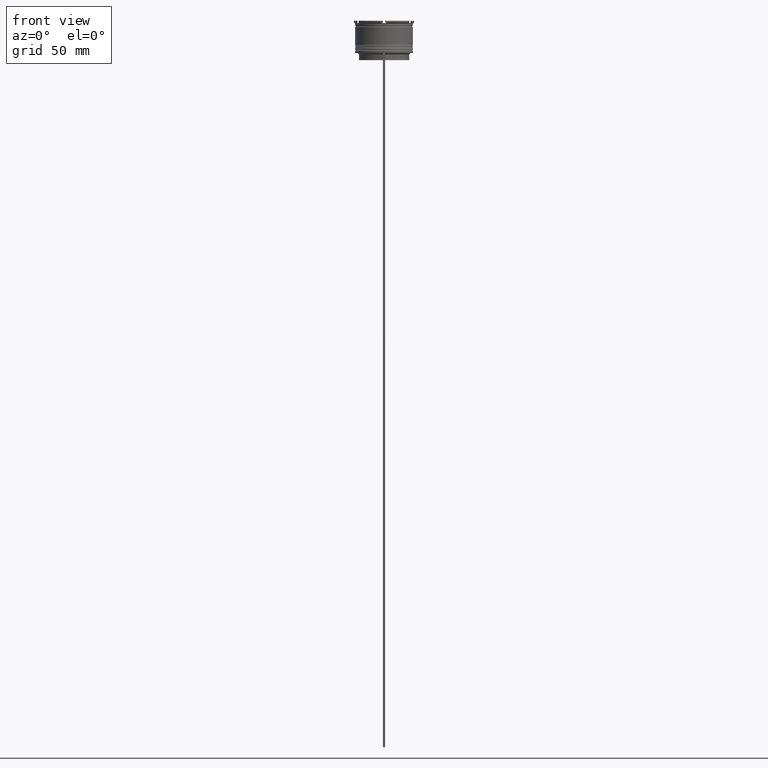
[diagram: clean part render]
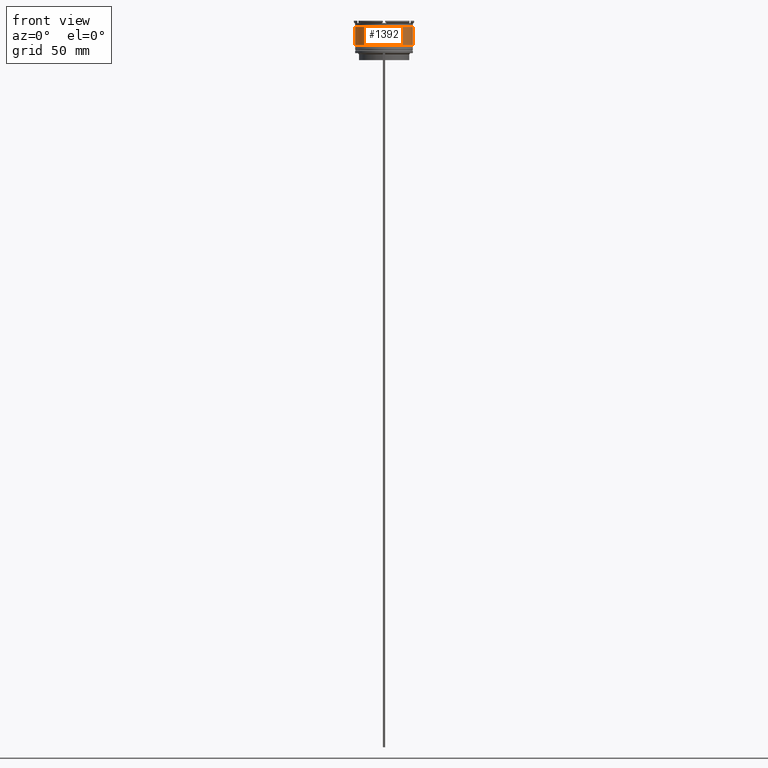
[diagram: same view with one face highlighted and labeled with its STEP entity id]
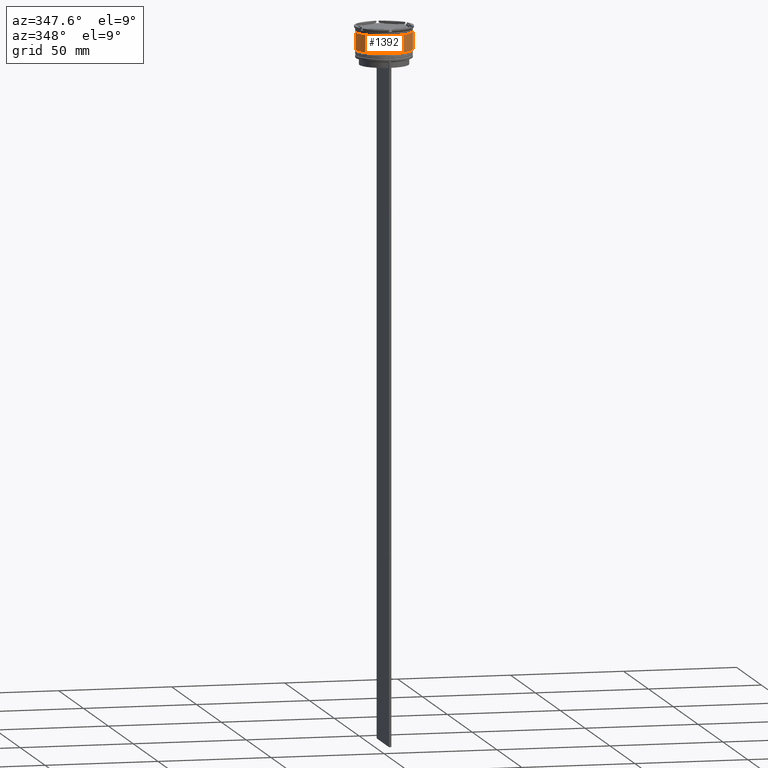
[diagram: same view with one face highlighted and labeled with its STEP entity id]
A machine part, front view. The second image highlights one B-rep face of the part: STEP entity #1392.
A second angle (auxiliary view) of the same face is appended — the face is thin or edge-on in the first view.
In plain terms, the highlighted cylindrical surface (edge-blend (fillet) strip) has radius 12.5 mm, axis along (-0, -0, 1).
Its self-contained STEP definition (entity closure, byte-faithful):
#62 = VECTOR ( 'NONE', #95, 1000.000000000000000 ) ;
#95 = DIRECTION ( 'NONE',  ( -0.000000000000000000, -0.000000000000000000, 1.000000000000000000 ) ) ;
#149 = AXIS2_PLACEMENT_3D ( 'NONE', #1137, #231, #922 ) ;
#219 = LINE ( 'NONE', #880, #1826 ) ;
#231 = DIRECTION ( 'NONE',  ( -0.000000000000000000, -0.000000000000000000, 1.000000000000000000 ) ) ;
#271 = DIRECTION ( 'NONE',  ( -0.000000000000000000, -0.000000000000000000, 1.000000000000000000 ) ) ;
#303 = FACE_OUTER_BOUND ( 'NONE', #1234, .T. ) ;
#534 = EDGE_CURVE ( 'NONE', #2779, #2216, #219, .T. ) ;
#583 = CARTESIAN_POINT ( 'NONE',  ( 12.50000000000000178, 0.000000000000000000, -10.50000000000000178 ) ) ;
#708 = AXIS2_PLACEMENT_3D ( 'NONE', #743, #271, #1624 ) ;
#715 = CIRCLE ( 'NONE', #149, 12.50000000000000178 ) ;
#743 = CARTESIAN_POINT ( 'NONE',  ( 0.000000000000000000, 0.000000000000000000, 0.000000000000000000 ) ) ;
#814 = VERTEX_POINT ( 'NONE', #2151 ) ;
#880 = CARTESIAN_POINT ( 'NONE',  ( 12.50000000000000000, 0.000000000000000000, 0.000000000000000000 ) ) ;
#922 = DIRECTION ( 'NONE',  ( 1.000000000000000000, 0.000000000000000000, 0.000000000000000000 ) ) ;
#936 = EDGE_CURVE ( 'NONE', #814, #2779, #715, .T. ) ;
#942 = CIRCLE ( 'NONE', #1633, 12.49999999999999822 ) ;
#994 = EDGE_CURVE ( 'NONE', #814, #1410, #2513, .T. ) ;
#1103 = CARTESIAN_POINT ( 'NONE',  ( 0.000000000000000000, 0.000000000000000000, -2.699999999999999289 ) ) ;
#1137 = CARTESIAN_POINT ( 'NONE',  ( 0.000000000000000000, 0.000000000000000000, -10.50000000000000178 ) ) ;
#1234 = EDGE_LOOP ( 'NONE', ( #2807, #2221, #2082, #2157 ) ) ;
#1392 = ADVANCED_FACE ( 'NONE', ( #303 ), #1613, .T. ) ;
#1410 = VERTEX_POINT ( 'NONE', #2726 ) ;
#1419 = CARTESIAN_POINT ( 'NONE',  ( -12.50000000000000000, 1.530808498934191521E-15, 0.000000000000000000 ) ) ;
#1521 = DIRECTION ( 'NONE',  ( -0.000000000000000000, -0.000000000000000000, 1.000000000000000000 ) ) ;
#1613 = CYLINDRICAL_SURFACE ( 'NONE', #708, 12.50000000000000000 ) ;
#1624 = DIRECTION ( 'NONE',  ( 1.000000000000000000, 0.000000000000000000, 0.000000000000000000 ) ) ;
#1633 = AXIS2_PLACEMENT_3D ( 'NONE', #1103, #1521, #2881 ) ;
#1677 = EDGE_CURVE ( 'NONE', #1410, #2216, #942, .T. ) ;
#1826 = VECTOR ( 'NONE', #2626, 1000.000000000000000 ) ;
#2070 = CARTESIAN_POINT ( 'NONE',  ( 12.49999999999999822, 0.000000000000000000, -2.699999999999999289 ) ) ;
#2082 = ORIENTED_EDGE ( 'NONE', *, *, #534, .T. ) ;
#2151 = CARTESIAN_POINT ( 'NONE',  ( -12.50000000000000355, 1.530808498934191916E-15, -10.50000000000000178 ) ) ;
#2157 = ORIENTED_EDGE ( 'NONE', *, *, #1677, .F. ) ;
#2216 = VERTEX_POINT ( 'NONE', #2070 ) ;
#2221 = ORIENTED_EDGE ( 'NONE', *, *, #936, .T. ) ;
#2513 = LINE ( 'NONE', #1419, #62 ) ;
#2626 = DIRECTION ( 'NONE',  ( -0.000000000000000000, -0.000000000000000000, 1.000000000000000000 ) ) ;
#2726 = CARTESIAN_POINT ( 'NONE',  ( -12.49999999999999822, 1.530808498934191324E-15, -2.699999999999999289 ) ) ;
#2779 = VERTEX_POINT ( 'NONE', #583 ) ;
#2807 = ORIENTED_EDGE ( 'NONE', *, *, #994, .F. ) ;
#2881 = DIRECTION ( 'NONE',  ( 1.000000000000000000, 0.000000000000000000, 0.000000000000000000 ) ) ;